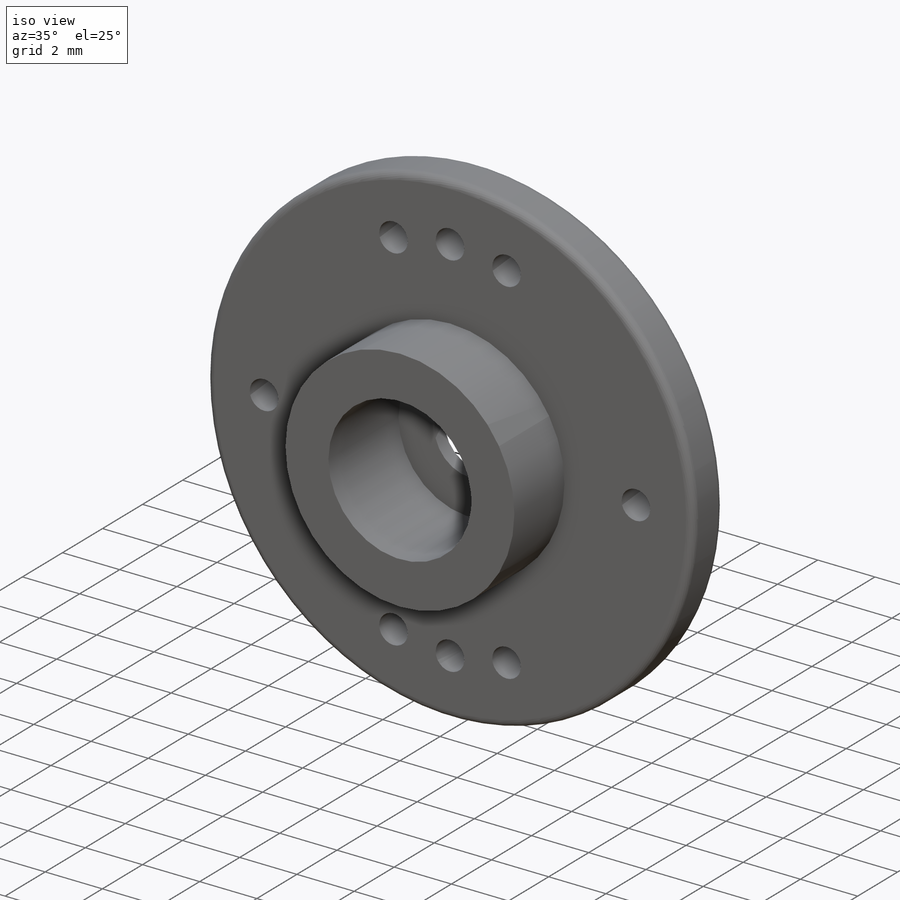
[diagram: iso view]
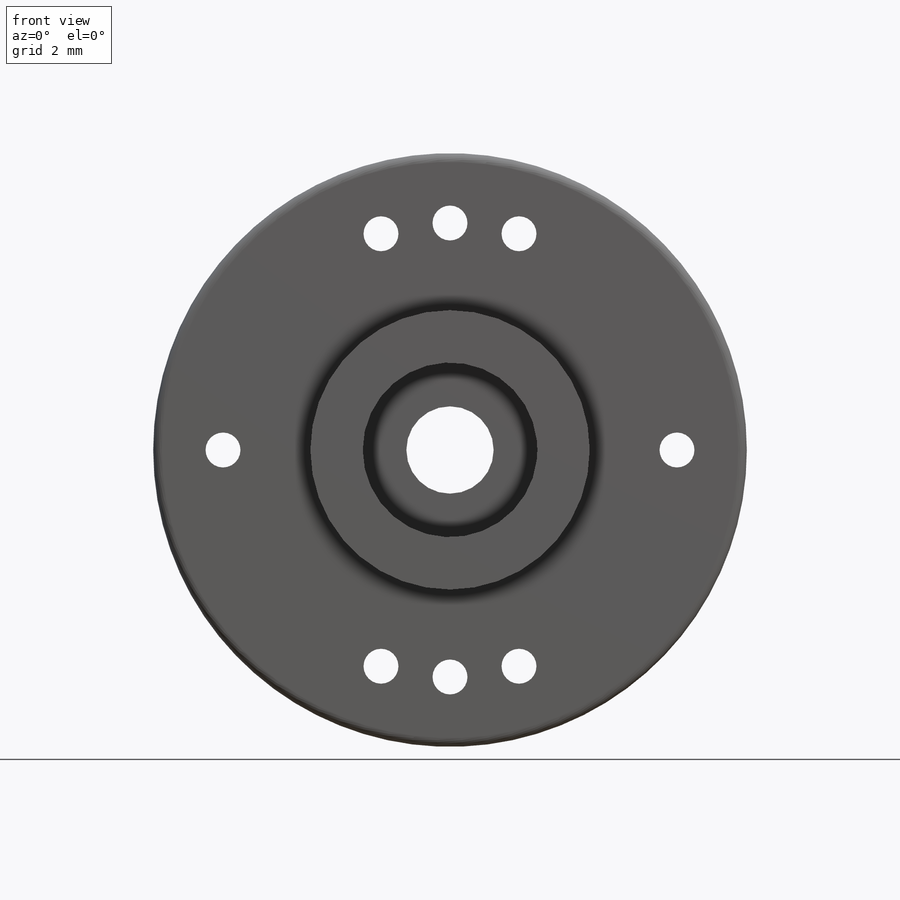
[diagram: front view]
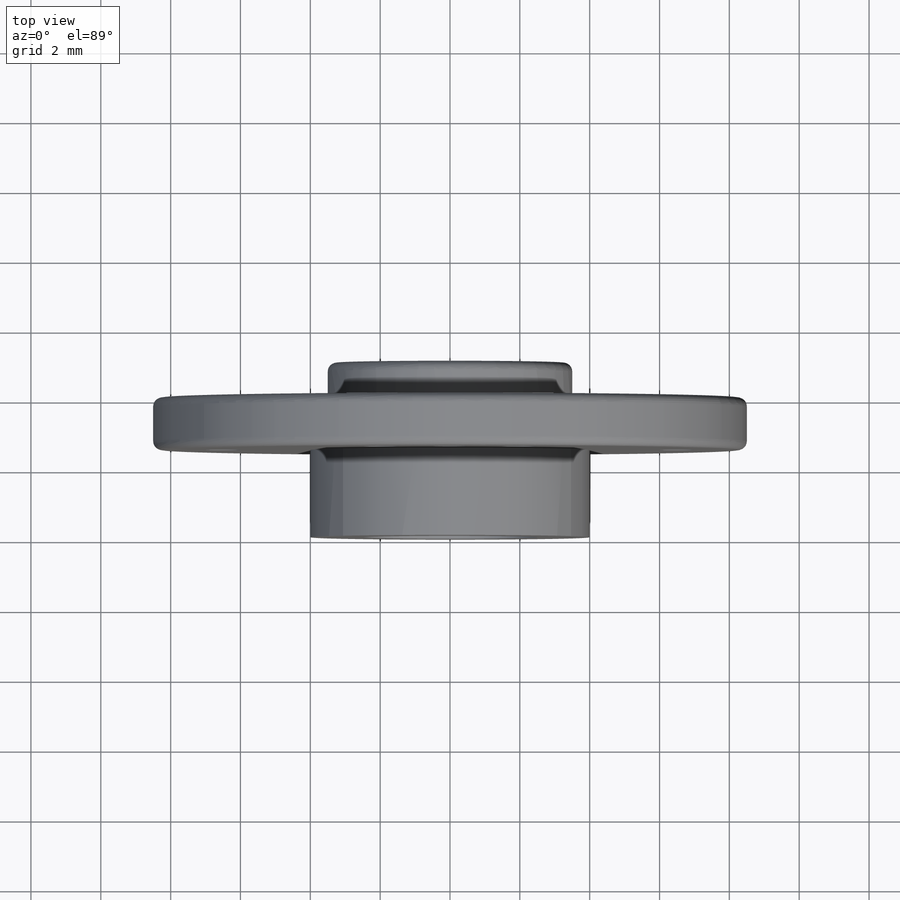
[diagram: top view]
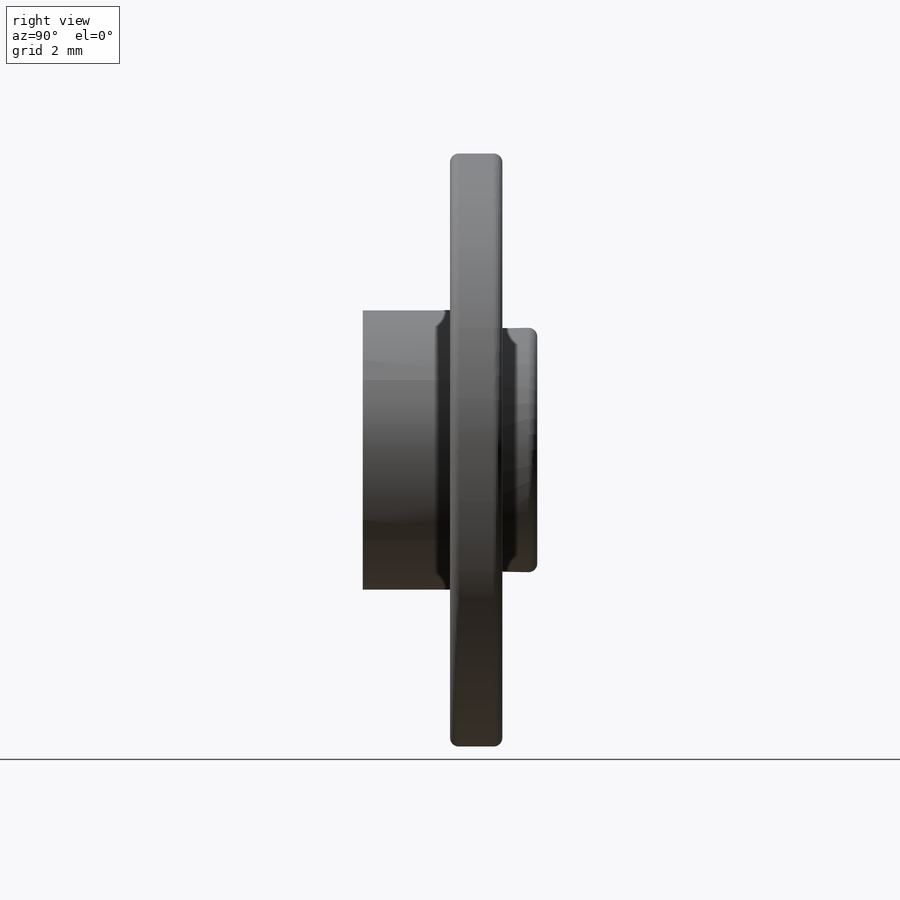
[diagram: right view]
SOLIDWORKS PART (.sldprt)
format: sldprt  version: not decoded by parser v0  size: 282,112 bytes
history: native  units: mm
features: sketch x4, extrude x4, material x1, fillet x1 (+11 scaffold rows collapsed)
feature tree (21):
  scaffold x11  (default folders/planes/origin — collapsed)
  material  "Nylon 101"
  sketch  "Sketch1"  dims[D1=17.0mm D2=2.5mm D3=6.0mm D4=7.0mm D5=1.0mm D16=8.0mm D17=5.0mm D6=2.0mm D7=2.0mm D8=2.0mm D9=2.0mm D10=2.0mm D11=2.0mm D12=2.0mm D13=2.0mm D14=2.0mm D15=2.0mm]
  extrude  "Boss-Extrude1"  Depth=0.5mm
  extrude  "Boss-Extrude2"  [1 undecoded]
  sketch  "Sketch1<4>"  dims[D1=1.5mm]
  extrude  "Boss-Extrude3"  [1 undecoded]
  sketch  "Sketch1<5>"  dims[D1=4.0mm]
  extrude  "Boss-Extrude4"  [1 undecoded]
  sketch  "Sketch1<6>"  dims[D1=1.0mm]
  fillet  "Fillet1"  Radius=0.25mm
decode coverage: 6 of 9 modeling features carry decoded parameters
note: 3 parameter values undecoded
summary: no parameter record found for 3 features
note: suppression state not decoded; provenance and decode notes live in map.json
